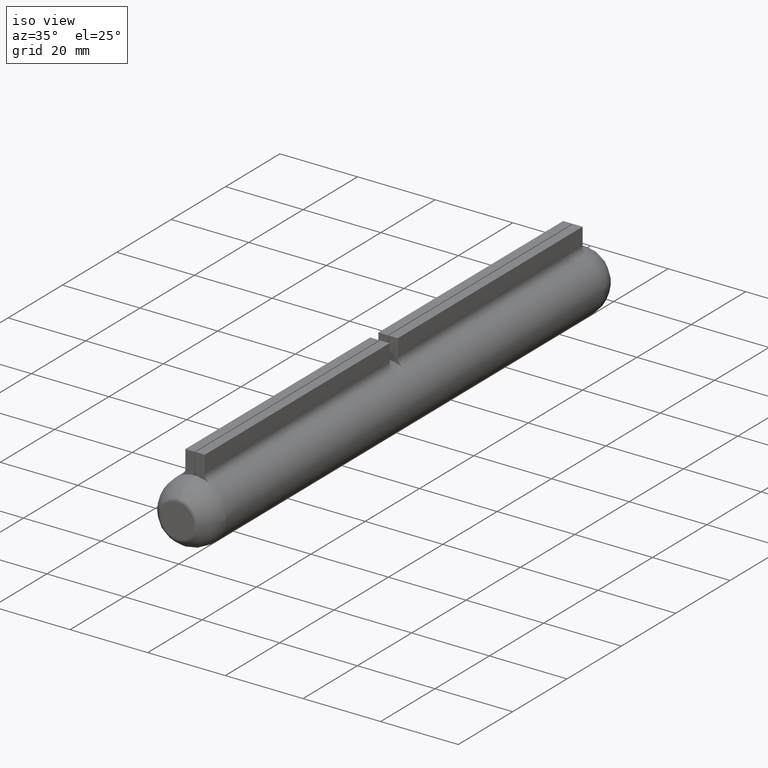
[diagram: clean part render]
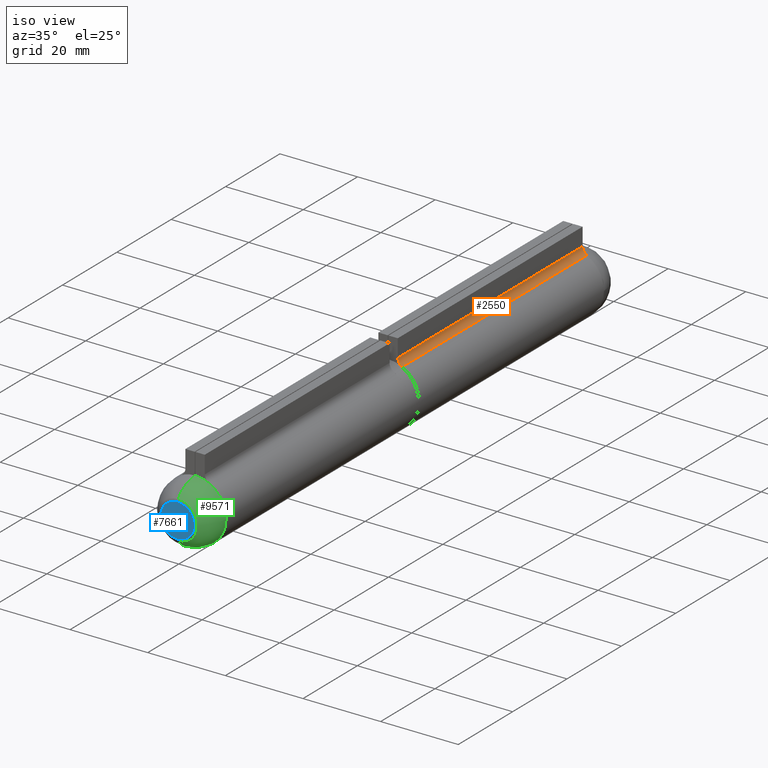
[diagram: same view with three faces highlighted in distinct colors, each labeled with its STEP entity id]
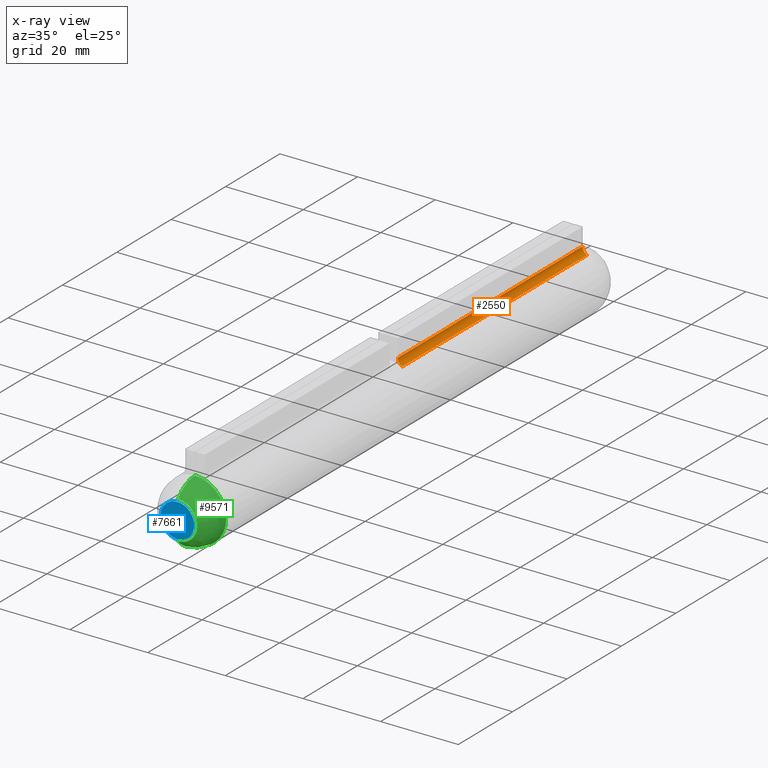
[diagram: x-ray of the same camera — body ghosted, the three highlighted faces saturated]
A machine part, iso view with three faces highlighted in distinct colors.
The next image is the same camera in x-ray (body ghosted, the three faces saturated) — at least one of them is partly hidden behind the body in this view.
Their STEP definitions:

[orange] entity #2550 — the highlighted cylindrical surface (edge-blend (fillet) strip) has radius 2 mm, axis along (-0, -1, -0).
#110 = CARTESIAN_POINT ( 'NONE',  ( 3.600000000000000089, 34.00000000000000000, 7.144228439796698638 ) ) ;
#717 = VECTOR ( 'NONE', #8956, 1000.000000000000000 ) ;
#784 = ORIENTED_EDGE ( 'NONE', *, *, #8024, .F. ) ;
#872 = LINE ( 'NONE', #6856, #717 ) ;
#1284 = AXIS2_PLACEMENT_3D ( 'NONE', #7570, #1603, #8574 ) ;
#1333 = CARTESIAN_POINT ( 'NONE',  ( 3.600000000000000089, -34.00000000000000000, 7.144228439796698638 ) ) ;
#1597 = CARTESIAN_POINT ( 'NONE',  ( 4.500000000000000888, 34.00000000000000000, 8.930285549745875073 ) ) ;
#1603 = DIRECTION ( 'NONE',  ( -0.000000000000000000, -1.000000000000000000, -0.000000000000000000 ) ) ;
#2096 = CIRCLE ( 'NONE', #1284, 2.000000000000000000 ) ;
#2550 = ADVANCED_FACE ( 'NONE', ( #12357 ), #7159, .F. ) ;
#2972 = CARTESIAN_POINT ( 'NONE',  ( 4.500000000000000888, 34.00000000000000000, 8.930285549745875073 ) ) ;
#3034 = ORIENTED_EDGE ( 'NONE', *, *, #12146, .T. ) ;
#3237 = CARTESIAN_POINT ( 'NONE',  ( 2.500000000000000888, -34.00000000000000000, 8.930285549745875073 ) ) ;
#3344 = AXIS2_PLACEMENT_3D ( 'NONE', #1597, #12575, #3659 ) ;
#3491 = CARTESIAN_POINT ( 'NONE',  ( 2.500000000000000888, 34.00000000000000000, 8.930285549745875073 ) ) ;
#3659 = DIRECTION ( 'NONE',  ( 0.000000000000000000, 0.000000000000000000, 1.000000000000000000 ) ) ;
#3971 = DIRECTION ( 'NONE',  ( -0.000000000000000000, -1.000000000000000000, -0.000000000000000000 ) ) ;
#4055 = ORIENTED_EDGE ( 'NONE', *, *, #12129, .T. ) ;
#4401 = AXIS2_PLACEMENT_3D ( 'NONE', #2972, #3971, #5966 ) ;
#4557 = VERTEX_POINT ( 'NONE', #11405 ) ;
#4754 = LINE ( 'NONE', #3491, #5674 ) ;
#5019 = CIRCLE ( 'NONE', #3344, 2.000000000000000000 ) ;
#5674 = VECTOR ( 'NONE', #10389, 1000.000000000000000 ) ;
#5913 = EDGE_LOOP ( 'NONE', ( #3034, #12125, #784, #4055 ) ) ;
#5966 = DIRECTION ( 'NONE',  ( 0.000000000000000000, 0.000000000000000000, -1.000000000000000000 ) ) ;
#6108 = VERTEX_POINT ( 'NONE', #3237 ) ;
#6856 = CARTESIAN_POINT ( 'NONE',  ( 3.600000000000000089, 34.00000000000000000, 7.144228439796698638 ) ) ;
#6900 = VERTEX_POINT ( 'NONE', #1333 ) ;
#7159 = CYLINDRICAL_SURFACE ( 'NONE', #4401, 2.000000000000000000 ) ;
#7570 = CARTESIAN_POINT ( 'NONE',  ( 4.500000000000000888, -34.00000000000000000, 8.930285549745875073 ) ) ;
#8024 = EDGE_CURVE ( 'NONE', #4557, #10241, #5019, .T. ) ;
#8574 = DIRECTION ( 'NONE',  ( 0.000000000000000000, 0.000000000000000000, 1.000000000000000000 ) ) ;
#8956 = DIRECTION ( 'NONE',  ( -0.000000000000000000, -1.000000000000000000, -0.000000000000000000 ) ) ;
#10241 = VERTEX_POINT ( 'NONE', #110 ) ;
#10389 = DIRECTION ( 'NONE',  ( -0.000000000000000000, -1.000000000000000000, -0.000000000000000000 ) ) ;
#11405 = CARTESIAN_POINT ( 'NONE',  ( 2.500000000000000888, 34.00000000000000000, 8.930285549745875073 ) ) ;
#11705 = EDGE_CURVE ( 'NONE', #10241, #6900, #872, .T. ) ;
#12125 = ORIENTED_EDGE ( 'NONE', *, *, #11705, .F. ) ;
#12129 = EDGE_CURVE ( 'NONE', #4557, #6108, #4754, .T. ) ;
#12146 = EDGE_CURVE ( 'NONE', #6108, #6900, #2096, .T. ) ;
#12357 = FACE_OUTER_BOUND ( 'NONE', #5913, .T. ) ;
#12575 = DIRECTION ( 'NONE',  ( -0.000000000000000000, -1.000000000000000000, -0.000000000000000000 ) ) ;

[blue] entity #7661 — the highlighted planar face has unit normal (0, 1, 0).
#21 = CARTESIAN_POINT ( 'NONE',  ( 5.681653064597725881E-16, -40.49999999999999289, -4.330127018922203419 ) ) ;
#36 = EDGE_CURVE ( 'NONE', #9098, #2200, #9473, .T. ) ;
#191 = DIRECTION ( 'NONE',  ( 0.000000000000000000, -3.108718797835590674E-16, 1.000000000000000000 ) ) ;
#437 = AXIS2_PLACEMENT_3D ( 'NONE', #1222, #4069, #7078 ) ;
#1143 = PLANE ( 'NONE',  #6083 ) ;
#1222 = CARTESIAN_POINT ( 'NONE',  ( 0.000000000000000000, -40.49999999999999289, -2.020667218593131522E-15 ) ) ;
#1233 = DIRECTION ( 'NONE',  ( 0.000000000000000000, 0.000000000000000000, 1.000000000000000000 ) ) ;
#2127 = DIRECTION ( 'NONE',  ( -0.000000000000000000, 1.000000000000000000, 3.108718797835590674E-16 ) ) ;
#2200 = VERTEX_POINT ( 'NONE', #7149 ) ;
#2232 = AXIS2_PLACEMENT_3D ( 'NONE', #7216, #4082, #1233 ) ;
#4069 = DIRECTION ( 'NONE',  ( 0.000000000000000000, -1.000000000000000000, -3.108718797835590674E-16 ) ) ;
#4082 = DIRECTION ( 'NONE',  ( 0.000000000000000000, -1.000000000000000000, -3.108718797835590674E-16 ) ) ;
#5842 = CIRCLE ( 'NONE', #437, 4.330127018922201643 ) ;
#6083 = AXIS2_PLACEMENT_3D ( 'NONE', #10003, #2127, #191 ) ;
#7078 = DIRECTION ( 'NONE',  ( 0.000000000000000000, 0.000000000000000000, 1.000000000000000000 ) ) ;
#7149 = CARTESIAN_POINT ( 'NONE',  ( 0.000000000000000000, -40.49999999999999289, 4.330127018922199866 ) ) ;
#7216 = CARTESIAN_POINT ( 'NONE',  ( 0.000000000000000000, -40.49999999999999289, -2.020667218593131522E-15 ) ) ;
#7661 = ADVANCED_FACE ( 'NONE', ( #9432 ), #1143, .F. ) ;
#8288 = ORIENTED_EDGE ( 'NONE', *, *, #36, .T. ) ;
#8591 = EDGE_LOOP ( 'NONE', ( #8983, #8288 ) ) ;
#8983 = ORIENTED_EDGE ( 'NONE', *, *, #11834, .T. ) ;
#9098 = VERTEX_POINT ( 'NONE', #21 ) ;
#9432 = FACE_OUTER_BOUND ( 'NONE', #8591, .T. ) ;
#9473 = CIRCLE ( 'NONE', #2232, 4.330127018922201643 ) ;
#10003 = CARTESIAN_POINT ( 'NONE',  ( 0.000000000000000000, -40.49999999999999289, 6.025812857153686622E-14 ) ) ;
#11834 = EDGE_CURVE ( 'NONE', #2200, #9098, #5842, .T. ) ;

[green] entity #9571 — the highlighted spherical surface has radius 8 mm.
#135 = CARTESIAN_POINT ( 'NONE',  ( 0.000000000000000000, -34.00000000000000000, -7.731306051213085864E-31 ) ) ;
#434 = FACE_OUTER_BOUND ( 'NONE', #11861, .T. ) ;
#1541 = EDGE_CURVE ( 'NONE', #6812, #10667, #8999, .T. ) ;
#1730 = VERTEX_POINT ( 'NONE', #11850 ) ;
#2309 = DIRECTION ( 'NONE',  ( -0.000000000000000000, 1.000000000000000000, 3.108718797835590674E-16 ) ) ;
#2411 = DIRECTION ( 'NONE',  ( -1.000000000000000000, 3.807082525218564146E-32, -1.224646799147353207E-16 ) ) ;
#2414 = CARTESIAN_POINT ( 'NONE',  ( 0.000000000000000000, -34.00000000000000000, 0.000000000000000000 ) ) ;
#2773 = EDGE_CURVE ( 'NONE', #11949, #1730, #3732, .T. ) ;
#3203 = EDGE_CURVE ( 'NONE', #1730, #7062, #5394, .T. ) ;
#3359 = DIRECTION ( 'NONE',  ( 0.000000000000000000, 0.000000000000000000, 1.000000000000000000 ) ) ;
#3408 = DIRECTION ( 'NONE',  ( -1.224646799147353207E-16, 0.000000000000000000, 1.000000000000000000 ) ) ;
#3485 = AXIS2_PLACEMENT_3D ( 'NONE', #11356, #2411, #3408 ) ;
#3688 = ORIENTED_EDGE ( 'NONE', *, *, #4720, .F. ) ;
#3732 = CIRCLE ( 'NONE', #11673, 7.999999999999998224 ) ;
#4393 = CARTESIAN_POINT ( 'NONE',  ( -7.928802164374866369E-16, -40.28571428571427759, 4.948716593053942958 ) ) ;
#4720 = EDGE_CURVE ( 'NONE', #10667, #11949, #7481, .T. ) ;
#5192 = EDGE_CURVE ( 'NONE', #6812, #11798, #6067, .T. ) ;
#5394 = CIRCLE ( 'NONE', #9211, 7.999999999999998224 ) ;
#5460 = CARTESIAN_POINT ( 'NONE',  ( -9.797174393178823685E-16, -34.00000000000000000, 7.999999999999998224 ) ) ;
#6067 = CIRCLE ( 'NONE', #12409, 4.948716593053944734 ) ;
#6123 = CARTESIAN_POINT ( 'NONE',  ( 0.000000000000000000, -34.00000000000000000, 0.000000000000000000 ) ) ;
#6238 = CARTESIAN_POINT ( 'NONE',  ( 0.000000000000000000, -34.00000000000000000, -7.731306051213085864E-31 ) ) ;
#6250 = DIRECTION ( 'NONE',  ( 0.000000000000000000, 0.000000000000000000, -1.000000000000000000 ) ) ;
#6419 = AXIS2_PLACEMENT_3D ( 'NONE', #2414, #7219, #6250 ) ;
#6459 = DIRECTION ( 'NONE',  ( 0.000000000000000000, 0.000000000000000000, 1.000000000000000000 ) ) ;
#6645 = DIRECTION ( 'NONE',  ( 1.000000000000000000, 0.000000000000000000, 0.000000000000000000 ) ) ;
#6812 = VERTEX_POINT ( 'NONE', #4393 ) ;
#7028 = AXIS2_PLACEMENT_3D ( 'NONE', #8511, #6645, #11680 ) ;
#7062 = VERTEX_POINT ( 'NONE', #8725 ) ;
#7100 = DIRECTION ( 'NONE',  ( -0.000000000000000000, 1.000000000000000000, 3.108718797835590674E-16 ) ) ;
#7219 = DIRECTION ( 'NONE',  ( -1.000000000000000000, 0.000000000000000000, -0.000000000000000000 ) ) ;
#7481 = CIRCLE ( 'NONE', #11926, 7.999999999999998224 ) ;
#7598 = ORIENTED_EDGE ( 'NONE', *, *, #2773, .F. ) ;
#8276 = CARTESIAN_POINT ( 'NONE',  ( 0.000000000000000000, -40.28571428571427759, -1.954051815782367731E-15 ) ) ;
#8352 = CIRCLE ( 'NONE', #7028, 7.999999999999998224 ) ;
#8511 = CARTESIAN_POINT ( 'NONE',  ( 0.000000000000000000, -34.00000000000000000, 0.000000000000000000 ) ) ;
#8725 = CARTESIAN_POINT ( 'NONE',  ( 0.000000000000000000, -34.00000000000000000, -7.999999999999998224 ) ) ;
#8999 = CIRCLE ( 'NONE', #3485, 7.999999999999998224 ) ;
#9128 = SPHERICAL_SURFACE ( 'NONE', #6419, 7.999999999999998224 ) ;
#9211 = AXIS2_PLACEMENT_3D ( 'NONE', #6123, #10923, #11925 ) ;
#9571 = ADVANCED_FACE ( 'NONE', ( #434 ), #9128, .T. ) ;
#10112 = DIRECTION ( 'NONE',  ( -0.000000000000000000, 1.000000000000000000, 3.108718797835590674E-16 ) ) ;
#10667 = VERTEX_POINT ( 'NONE', #5460 ) ;
#10884 = EDGE_CURVE ( 'NONE', #11798, #7062, #8352, .T. ) ;
#10923 = DIRECTION ( 'NONE',  ( 0.000000000000000000, 1.000000000000000000, 0.000000000000000000 ) ) ;
#10941 = ORIENTED_EDGE ( 'NONE', *, *, #3203, .F. ) ;
#11138 = CARTESIAN_POINT ( 'NONE',  ( 0.000000000000000000, -40.28571428571427759, -4.948716593053946511 ) ) ;
#11189 = DIRECTION ( 'NONE',  ( 0.000000000000000000, 0.000000000000000000, 1.000000000000000000 ) ) ;
#11327 = ORIENTED_EDGE ( 'NONE', *, *, #10884, .T. ) ;
#11344 = CARTESIAN_POINT ( 'NONE',  ( 0.2000104767073355716, -34.00000000000000000, 7.997499347246443513 ) ) ;
#11356 = CARTESIAN_POINT ( 'NONE',  ( 0.000000000000000000, -34.00000000000000000, 0.000000000000000000 ) ) ;
#11464 = ORIENTED_EDGE ( 'NONE', *, *, #1541, .F. ) ;
#11673 = AXIS2_PLACEMENT_3D ( 'NONE', #135, #7100, #6459 ) ;
#11680 = DIRECTION ( 'NONE',  ( 0.000000000000000000, 0.000000000000000000, -1.000000000000000000 ) ) ;
#11798 = VERTEX_POINT ( 'NONE', #11138 ) ;
#11850 = CARTESIAN_POINT ( 'NONE',  ( 3.600000000000000089, -34.00000000000000000, 7.144228439796698638 ) ) ;
#11861 = EDGE_LOOP ( 'NONE', ( #11464, #12401, #11327, #10941, #7598, #3688 ) ) ;
#11925 = DIRECTION ( 'NONE',  ( 0.000000000000000000, 0.000000000000000000, 1.000000000000000000 ) ) ;
#11926 = AXIS2_PLACEMENT_3D ( 'NONE', #6238, #10112, #11189 ) ;
#11949 = VERTEX_POINT ( 'NONE', #11344 ) ;
#12401 = ORIENTED_EDGE ( 'NONE', *, *, #5192, .T. ) ;
#12409 = AXIS2_PLACEMENT_3D ( 'NONE', #8276, #2309, #3359 ) ;